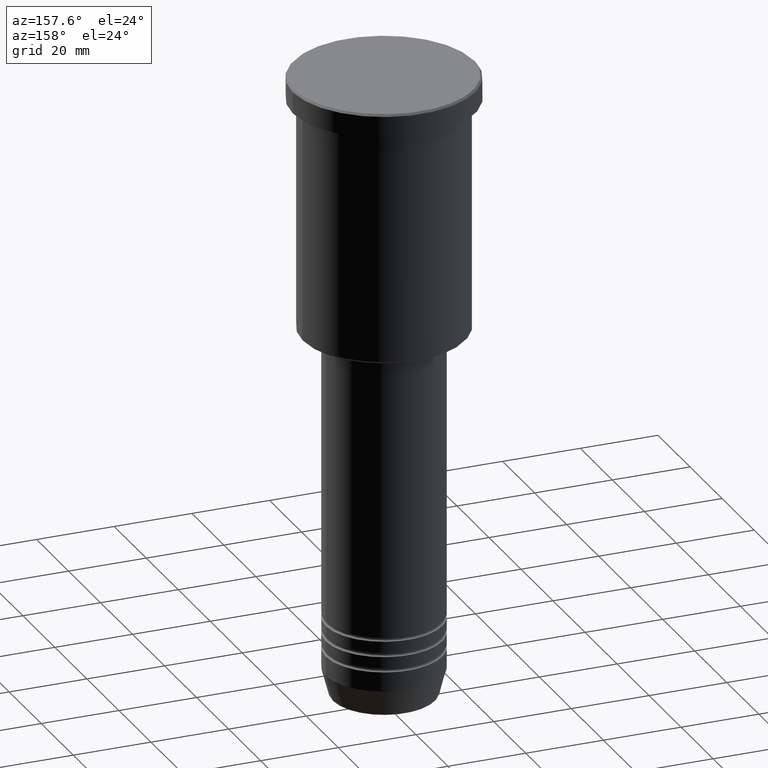
[diagram: clean part render]
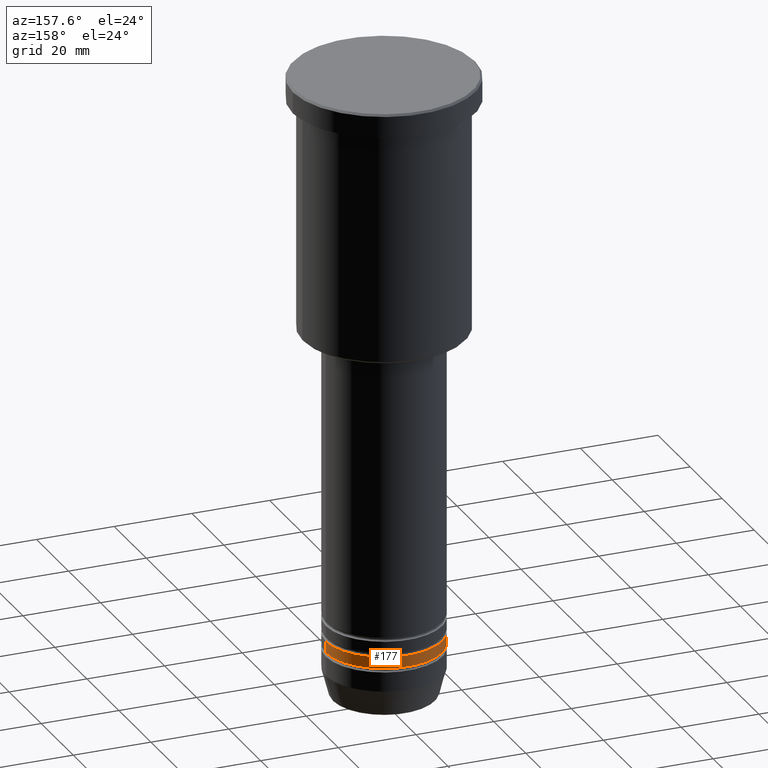
[diagram: same view with one face highlighted and labeled with its STEP entity id]
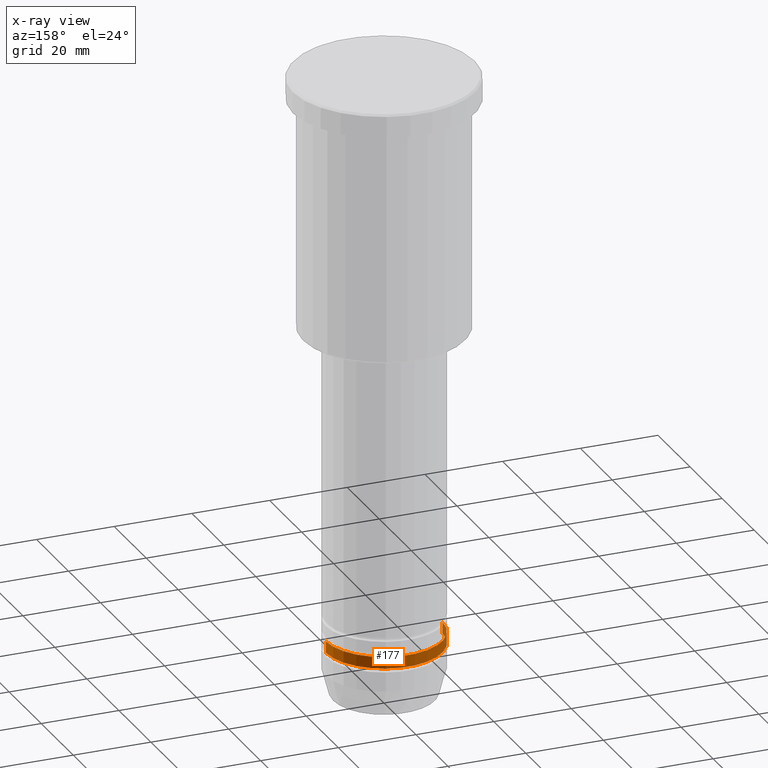
[diagram: x-ray of the same camera — body ghosted, the highlighted face saturated]
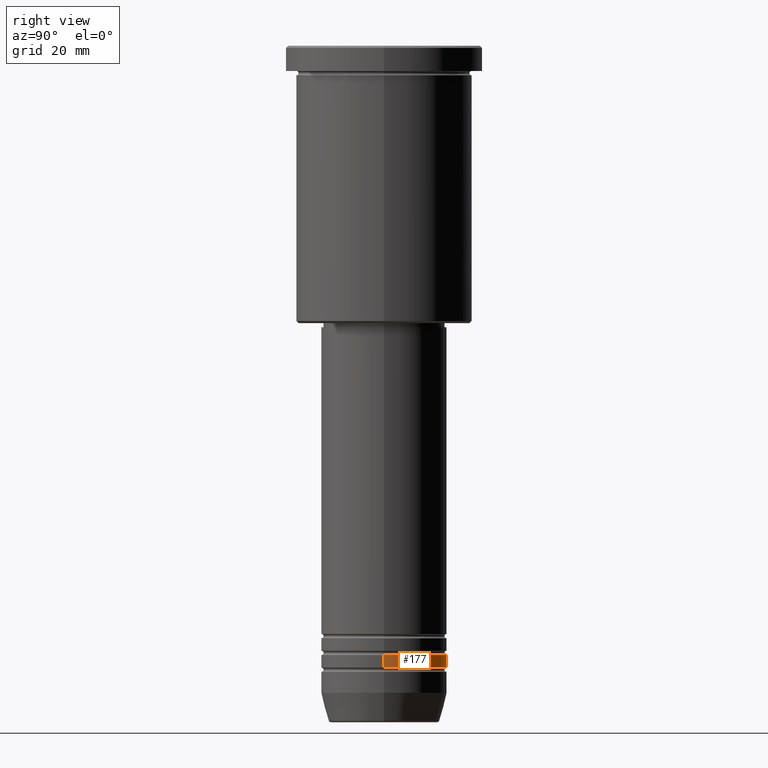
[diagram: same view with one face highlighted and labeled with its STEP entity id]
A machine part, auxiliary view. The second image highlights one B-rep face of the part: STEP entity #177.
The next image is the same camera in x-ray: the body ghosted, the highlighted face saturated — about 0% of this face is hidden behind the body in this view.
A second angle (right view) of the same face is appended — the face is thin or edge-on in the first view.
In plain terms, the highlighted cylindrical surface (partial cylindrical patch) has radius 15 mm, axis along (-0, -0, 1).
Its self-contained STEP definition (entity closure, byte-faithful):
#54 = ORIENTED_EDGE ( 'NONE', *, *, #1142, .F. ) ;
#100 = DIRECTION ( 'NONE',  ( -0.000000000000000000, -0.000000000000000000, 1.000000000000000000 ) ) ;
#135 = CARTESIAN_POINT ( 'NONE',  ( 15.00000000000000000, 0.000000000000000000, -144.9999999999999147 ) ) ;
#173 = DIRECTION ( 'NONE',  ( 1.000000000000000000, 0.000000000000000000, 0.000000000000000000 ) ) ;
#176 = ORIENTED_EDGE ( 'NONE', *, *, #912, .T. ) ;
#177 = ADVANCED_FACE ( 'NONE', ( #376 ), #1111, .T. ) ;
#192 = CARTESIAN_POINT ( 'NONE',  ( -15.00000000000000000, 1.836970198721029589E-15, -144.9999999999999147 ) ) ;
#216 = CARTESIAN_POINT ( 'NONE',  ( 0.000000000000000000, 0.000000000000000000, -147.9999999999999147 ) ) ;
#284 = CARTESIAN_POINT ( 'NONE',  ( 0.000000000000000000, 0.000000000000000000, 0.000000000000000000 ) ) ;
#288 = DIRECTION ( 'NONE',  ( -0.000000000000000000, -0.000000000000000000, 1.000000000000000000 ) ) ;
#338 = EDGE_CURVE ( 'NONE', #990, #1138, #1031, .T. ) ;
#339 = EDGE_CURVE ( 'NONE', #662, #1138, #513, .T. ) ;
#376 = FACE_OUTER_BOUND ( 'NONE', #751, .T. ) ;
#389 = CARTESIAN_POINT ( 'NONE',  ( 0.000000000000000000, 0.000000000000000000, -144.9999999999999147 ) ) ;
#407 = CIRCLE ( 'NONE', #902, 15.00000000000000000 ) ;
#424 = VECTOR ( 'NONE', #100, 1000.000000000000000 ) ;
#436 = CARTESIAN_POINT ( 'NONE',  ( -15.00000000000000000, 1.836970198721029589E-15, -147.9999999999999147 ) ) ;
#468 = LINE ( 'NONE', #1116, #1093 ) ;
#513 = CIRCLE ( 'NONE', #819, 15.00000000000000000 ) ;
#644 = DIRECTION ( 'NONE',  ( -0.000000000000000000, -0.000000000000000000, 1.000000000000000000 ) ) ;
#662 = VERTEX_POINT ( 'NONE', #135 ) ;
#668 = DIRECTION ( 'NONE',  ( 1.000000000000000000, 0.000000000000000000, 0.000000000000000000 ) ) ;
#751 = EDGE_LOOP ( 'NONE', ( #176, #1100, #1147, #54 ) ) ;
#764 = AXIS2_PLACEMENT_3D ( 'NONE', #284, #644, #668 ) ;
#819 = AXIS2_PLACEMENT_3D ( 'NONE', #389, #1091, #173 ) ;
#902 = AXIS2_PLACEMENT_3D ( 'NONE', #216, #1130, #1051 ) ;
#912 = EDGE_CURVE ( 'NONE', #1086, #990, #407, .T. ) ;
#922 = CARTESIAN_POINT ( 'NONE',  ( -15.00000000000000000, 1.836970198721029589E-15, 0.000000000000000000 ) ) ;
#945 = CARTESIAN_POINT ( 'NONE',  ( 15.00000000000000000, 0.000000000000000000, -147.9999999999999147 ) ) ;
#990 = VERTEX_POINT ( 'NONE', #436 ) ;
#1031 = LINE ( 'NONE', #922, #424 ) ;
#1051 = DIRECTION ( 'NONE',  ( 1.000000000000000000, 0.000000000000000000, 0.000000000000000000 ) ) ;
#1086 = VERTEX_POINT ( 'NONE', #945 ) ;
#1091 = DIRECTION ( 'NONE',  ( -0.000000000000000000, -0.000000000000000000, 1.000000000000000000 ) ) ;
#1093 = VECTOR ( 'NONE', #288, 1000.000000000000000 ) ;
#1100 = ORIENTED_EDGE ( 'NONE', *, *, #338, .T. ) ;
#1111 = CYLINDRICAL_SURFACE ( 'NONE', #764, 15.00000000000000000 ) ;
#1116 = CARTESIAN_POINT ( 'NONE',  ( 15.00000000000000000, 0.000000000000000000, 0.000000000000000000 ) ) ;
#1130 = DIRECTION ( 'NONE',  ( -0.000000000000000000, -0.000000000000000000, 1.000000000000000000 ) ) ;
#1138 = VERTEX_POINT ( 'NONE', #192 ) ;
#1142 = EDGE_CURVE ( 'NONE', #1086, #662, #468, .T. ) ;
#1147 = ORIENTED_EDGE ( 'NONE', *, *, #339, .F. ) ;